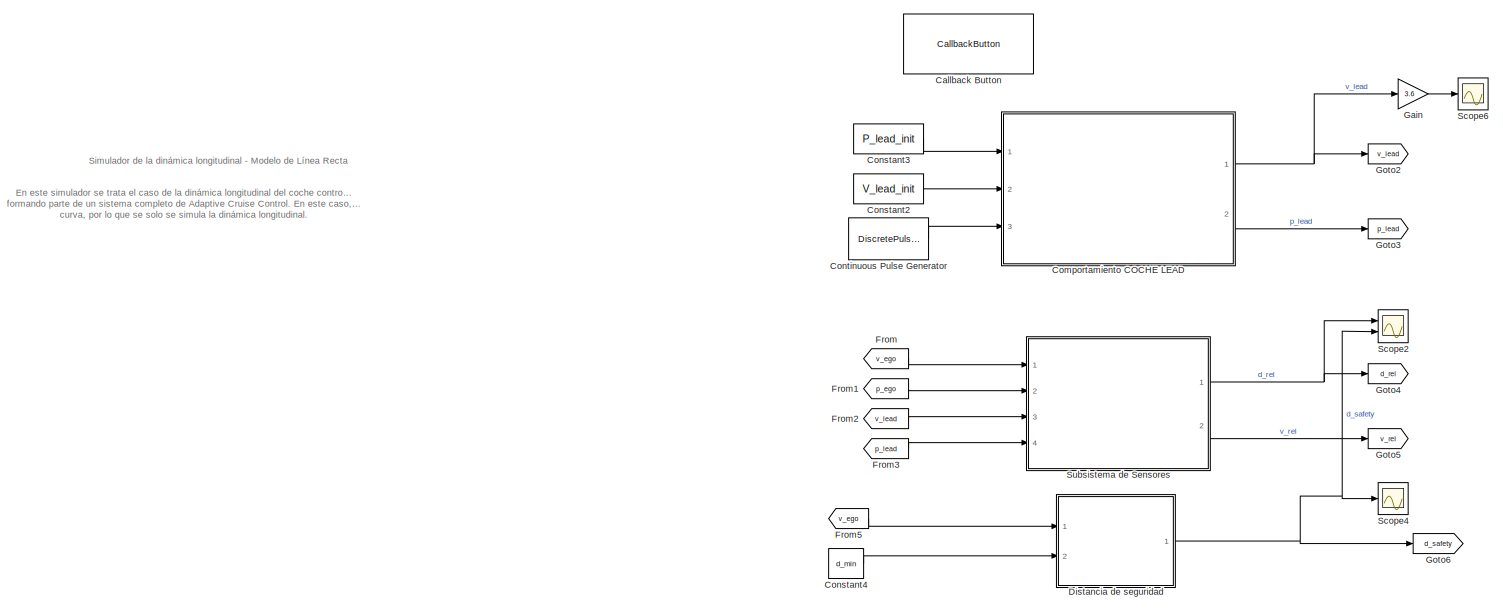
[diagram: root canvas - part 1/2, left side, full height]
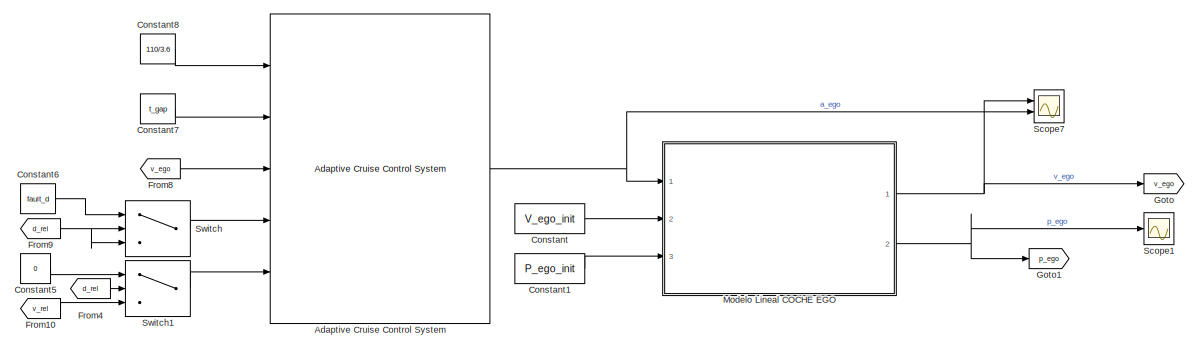
[diagram: root canvas - part 2/2, middle right region]
MODEL slx_6a7423e6e7fb
KIND model
CONFIG AbsTol = auto
CONFIG EnableMultiTasking = off
CONFIG FixedStep = auto
CONFIG InitFcn = initialize
CONFIG MaxStep = auto
CONFIG MinStep = auto
CONFIG RelTol = 1e-3
CONFIG SampleTimeConstraint = Unconstrained
CONFIG Solver = VariableStepAuto
CONFIG SolverName = VariableStepAuto
CONFIG StartTime = 0.0
CONFIG StopTime = 200
BLOCK [Reference] Adaptive Cruise Control System  REF=mpcadaslib/Adaptive Cruise Control System
  Ports = [5, 1]
  SourceBlock = mpcadaslib/Adaptive Cruise Control System
  SourceProductBaseCode = MP
  SourceType = Adaptive cruise control (ACC) system
BLOCK [CallbackButton] Callback Button
  ButtonText = INICIALIZACION
  ClickFcn = initialize
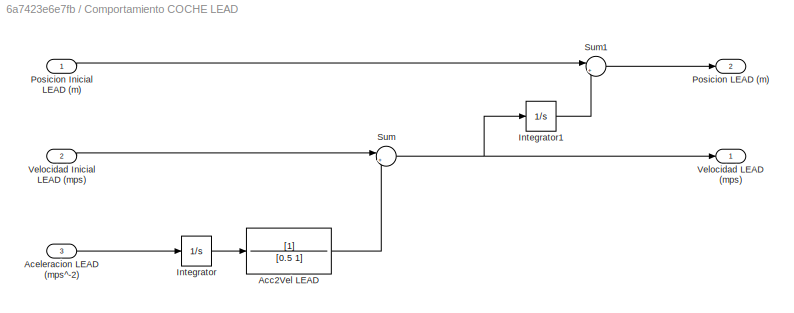
BLOCK [SubSystem] Comportamiento COCHE LEAD
  Ports = [3, 2]
  RequestExecContextInheritance = off
BLOCK [TransferFcn] Comportamiento COCHE LEAD/Acc2Vel LEAD
  Denominator = [0.5 1]
BLOCK [Inport] Comportamiento COCHE LEAD/Aceleracion LEAD (mps^-2)
  Port = 3
BLOCK [Integrator] Comportamiento COCHE LEAD/Integrator
  Ports = [1, 1]
BLOCK [Integrator] Comportamiento COCHE LEAD/Integrator1
  Ports = [1, 1]
BLOCK [Inport] Comportamiento COCHE LEAD/Posicion Inicial LEAD (m)
BLOCK [Outport] Comportamiento COCHE LEAD/Posicion LEAD (m)
  Port = 2
  VectorParamsAs1DForOutWhenUnconnected = off
BLOCK [Sum] Comportamiento COCHE LEAD/Sum
  Inputs = |++
  Ports = [2, 1]
BLOCK [Sum] Comportamiento COCHE LEAD/Sum1
  Inputs = |++
  Ports = [2, 1]
BLOCK [Inport] Comportamiento COCHE LEAD/Velocidad Inicial LEAD (mps)
  Port = 2
BLOCK [Outport] Comportamiento COCHE LEAD/Velocidad LEAD (mps)
  VectorParamsAs1DForOutWhenUnconnected = off
BLOCK [Constant] Constant
  Value = V_ego_init
BLOCK [Constant] Constant1
  Value = P_ego_init
BLOCK [Constant] Constant2
  Value = V_lead_init
BLOCK [Constant] Constant3
  Value = P_lead_init
BLOCK [Constant] Constant4
  Value = d_min
BLOCK [Constant] Constant5
  Value = 0
BLOCK [Constant] Constant6
  Value = fault_d
BLOCK [Constant] Constant7
  Value = t_gap
BLOCK [Constant] Constant8
  Value = 110/3.6
BLOCK [DiscretePulseGenerator] Continuous Pulse Generator
  Amplitude = -2
  Period = 50
  PhaseDelay = 10
  Ports = [0, 1]
  PulseType = Time based
  PulseWidth = 1/4
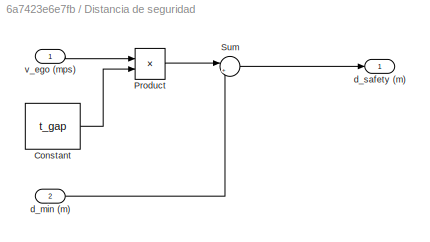
BLOCK [SubSystem] Distancia de seguridad
  Ports = [2, 1]
  RequestExecContextInheritance = off
BLOCK [Constant] Distancia de seguridad/Constant
  Value = t_gap
BLOCK [Product] Distancia de seguridad/Product
  Ports = [2, 1]
BLOCK [Sum] Distancia de seguridad/Sum
  Inputs = |++
  Ports = [2, 1]
BLOCK [Inport] Distancia de seguridad/d_min (m)
  Port = 2
BLOCK [Outport] Distancia de seguridad/d_safety (m)
  VectorParamsAs1DForOutWhenUnconnected = off
BLOCK [Inport] Distancia de seguridad/v_ego (mps)
BLOCK [From] From
  GotoTag = v_ego
  TagVisibility = global
BLOCK [From] From1
  GotoTag = p_ego
  TagVisibility = global
BLOCK [From] From10
  GotoTag = v_rel
  TagVisibility = global
BLOCK [From] From2
  GotoTag = v_lead
  TagVisibility = global
BLOCK [From] From3
  GotoTag = p_lead
  TagVisibility = global
BLOCK [From] From4
  GotoTag = d_rel
  TagVisibility = global
BLOCK [From] From5
  GotoTag = v_ego
  TagVisibility = global
BLOCK [From] From8
  GotoTag = v_ego
  TagVisibility = global
BLOCK [From] From9
  GotoTag = d_rel
  TagVisibility = global
BLOCK [Gain] Gain
  Gain = 3.6
BLOCK [Goto] Goto
  GotoTag = v_ego
  TagVisibility = global
BLOCK [Goto] Goto1
  GotoTag = p_ego
  TagVisibility = global
BLOCK [Goto] Goto2
  GotoTag = v_lead
  TagVisibility = global
BLOCK [Goto] Goto3
  GotoTag = p_lead
  TagVisibility = global
BLOCK [Goto] Goto4
  GotoTag = d_rel
  TagVisibility = global
BLOCK [Goto] Goto5
  GotoTag = v_rel
  TagVisibility = global
BLOCK [Goto] Goto6
  GotoTag = d_safety
  TagVisibility = global
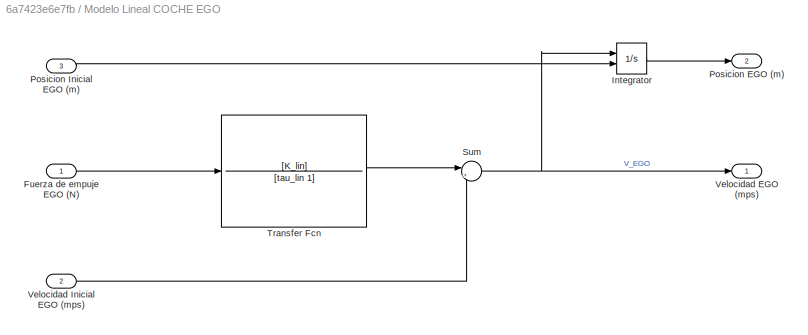
BLOCK [SubSystem] Modelo Lineal COCHE EGO
  Ports = [3, 2]
  RequestExecContextInheritance = off
BLOCK [Inport] Modelo Lineal COCHE EGO/Fuerza de empuje EGO (N)
BLOCK [Integrator] Modelo Lineal COCHE EGO/Integrator
  InitialConditionSource = external
  Ports = [2, 1]
BLOCK [Outport] Modelo Lineal COCHE EGO/Posicion EGO (m)
  Port = 2
  VectorParamsAs1DForOutWhenUnconnected = off
BLOCK [Inport] Modelo Lineal COCHE EGO/Posicion Inicial EGO (m)
  Port = 3
BLOCK [Sum] Modelo Lineal COCHE EGO/Sum
  Inputs = |++
  Ports = [2, 1]
BLOCK [TransferFcn] Modelo Lineal COCHE EGO/Transfer Fcn
  Denominator = [tau_lin 1]
  NameLocation = top
  Numerator = [K_lin]
BLOCK [Outport] Modelo Lineal COCHE EGO/Velocidad EGO (mps)
  VectorParamsAs1DForOutWhenUnconnected = off
BLOCK [Inport] Modelo Lineal COCHE EGO/Velocidad Inicial EGO (mps)
  Port = 2
BLOCK [Scope] Scope1
  Floating = off
  NumInputPorts = 1
  Ports = [1]
  ScopeSpecificationString = Simulink.scopes.TimeScopeBlockCfg('CurrentConfiguration', extmgr.ConfigurationSet(extmgr.Configuration('Core','General UI',true),extmgr.Configuration('Core','Source UI',true),extmgr.Configuration('Sources','WiredSimulink',true,'DataLoggingVariableName','ScopeData1'),extmgr.Configuration('Visuals','Time Domain',true,'SerializedDisplays',{struct('MinYLimReal','-746.53947','MaxYLimReal','6718.85523',...<+1382ch>
BLOCK [Scope] Scope2
  Floating = off
  NumInputPorts = 2
  Ports = [2]
  ScopeSpecificationString = Simulink.scopes.TimeScopeBlockCfg('CurrentConfiguration', extmgr.ConfigurationSet(extmgr.Configuration('Core','General UI',true),extmgr.Configuration('Core','Source UI',true),extmgr.Configuration('Sources','WiredSimulink',true,'SampleTime','0.1'),extmgr.Configuration('Visuals','Time Domain',true,'PlotType','Stairs','SerializedDisplays',{struct('MinYLimReal','8.75','MaxYLimReal','221.25','YLabelRea...<+1450ch>
BLOCK [Scope] Scope4
  Floating = off
  NumInputPorts = 1
  Ports = [1]
  ScopeSpecificationString = Simulink.scopes.TimeScopeBlockCfg('CurrentConfiguration', extmgr.ConfigurationSet(extmgr.Configuration('Core','General UI',true),extmgr.Configuration('Core','Source UI',true),extmgr.Configuration('Sources','WiredSimulink',true,'DataLoggingVariableName','ScopeData2'),extmgr.Configuration('Visuals','Time Domain',true,'SerializedDisplays',{struct('MinYLimReal','43.35207','MaxYLimReal','57.24366','YLa...<+1373ch>
BLOCK [Scope] Scope6
  Floating = off
  NumInputPorts = 1
  Ports = [1]
  ScopeSpecificationString = Simulink.scopes.TimeScopeBlockCfg('CurrentConfiguration', extmgr.ConfigurationSet(extmgr.Configuration('Core','General UI',true),extmgr.Configuration('Core','Source UI',true),extmgr.Configuration('Sources','WiredSimulink',true,'DataLoggingVariableName','ScopeData6'),extmgr.Configuration('Visuals','Time Domain',true,'SerializedDisplays',{struct('MinYLimReal','93.8','MaxYLimReal','111.8','YLabelReal...<+1412ch>
BLOCK [Scope] Scope7
  Floating = off
  NumInputPorts = 2
  Ports = [2]
  ScopeSpecificationString = Simulink.scopes.TimeScopeBlockCfg('CurrentConfiguration', extmgr.ConfigurationSet(extmgr.Configuration('Core','General UI',true),extmgr.Configuration('Core','Source UI',true),extmgr.Configuration('Sources','WiredSimulink',true,'DataLoggingVariableName','ScopeData5'),extmgr.Configuration('Visuals','Time Domain',true,'SerializedDisplays',{struct('MinYLimReal','22.23471','MaxYLimReal','31.49577','YLa...<+2072ch>
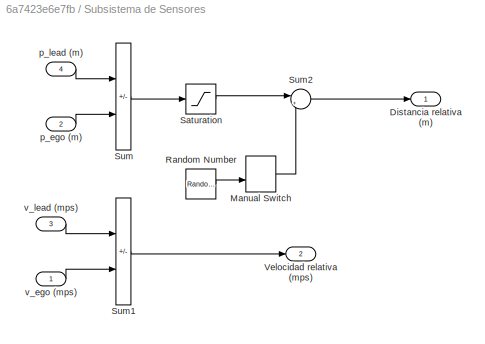
BLOCK [SubSystem] Subsistema de Sensores
  Ports = [4, 2]
  RequestExecContextInheritance = off
BLOCK [Outport] Subsistema de Sensores/Distancia relativa (m)
  VectorParamsAs1DForOutWhenUnconnected = off
BLOCK [ManualSwitch] Subsistema de Sensores/Manual Switch
BLOCK [RandomNumber] Subsistema de Sensores/Random Number
  SampleTime = 0.1
  Variance = 0.06
BLOCK [Saturate] Subsistema de Sensores/Saturation
  LowerLimit = 0
  UpperLimit = fault_d
BLOCK [Sum] Subsistema de Sensores/Sum
  IconShape = rectangular
  Inputs = +-
  Ports = [2, 1]
BLOCK [Sum] Subsistema de Sensores/Sum1
  IconShape = rectangular
  Inputs = +-
  Ports = [2, 1]
BLOCK [Sum] Subsistema de Sensores/Sum2
  Inputs = |++
  Ports = [2, 1]
BLOCK [Outport] Subsistema de Sensores/Velocidad relativa (mps)
  Port = 2
  VectorParamsAs1DForOutWhenUnconnected = off
BLOCK [Inport] Subsistema de Sensores/p_ego (m)
  Port = 2
BLOCK [Inport] Subsistema de Sensores/p_lead (m)
  Port = 4
BLOCK [Inport] Subsistema de Sensores/v_ego (mps)
BLOCK [Inport] Subsistema de Sensores/v_lead (mps)
  Port = 3
BLOCK [Switch] Switch
  Criteria = u2 > Threshold
  InputSameDT = off
  SaturateOnIntegerOverflow = off
  Threshold = 200
BLOCK [Switch] Switch1
  Criteria = u2 > Threshold
  InputSameDT = off
  SaturateOnIntegerOverflow = off
  Threshold = 200
ANNOTATION (root): En este simulador se trata el caso de la dinámica longitudinal del coche controlada mediante un MPC formando parte de un sistema completo de Adaptive Cruise Control. En este caso, no se considera ninguna curva, por lo que se solo se simula la dinámica longitudinal.
ANNOTATION (root): Simulador de la dinámica longitudinal - Modelo de Línea Recta
NET Adaptive Cruise Control System:1 -> Modelo Lineal COCHE EGO:1, Scope7:2
LINE Comportamiento COCHE LEAD/Acc2Vel LEAD:1 -> Comportamiento COCHE LEAD/Sum:2
LINE Comportamiento COCHE LEAD/Aceleracion LEAD (mps^-2):1 -> Comportamiento COCHE LEAD/Integrator:1
LINE Comportamiento COCHE LEAD/Integrator1:1 -> Comportamiento COCHE LEAD/Sum1:2
LINE Comportamiento COCHE LEAD/Integrator:1 -> Comportamiento COCHE LEAD/Acc2Vel LEAD:1
LINE Comportamiento COCHE LEAD/Posicion Inicial LEAD (m):1 -> Comportamiento COCHE LEAD/Sum1:1
LINE Comportamiento COCHE LEAD/Sum1:1 -> Comportamiento COCHE LEAD/Posicion LEAD (m):1
NET Comportamiento COCHE LEAD/Sum:1 -> Comportamiento COCHE LEAD/Integrator1:1, Comportamiento COCHE LEAD/Velocidad LEAD (mps):1
LINE Comportamiento COCHE LEAD/Velocidad Inicial LEAD (mps):1 -> Comportamiento COCHE LEAD/Sum:1
NET Comportamiento COCHE LEAD:1 -> Gain:1, Goto2:1
LINE Comportamiento COCHE LEAD:2 -> Goto3:1
LINE Constant1:1 -> Modelo Lineal COCHE EGO:3
LINE Constant2:1 -> Comportamiento COCHE LEAD:2
LINE Constant3:1 -> Comportamiento COCHE LEAD:1
LINE Constant4:1 -> Distancia de seguridad:2
LINE Constant5:1 -> Switch1:1
LINE Constant6:1 -> Switch:1
LINE Constant7:1 -> Adaptive Cruise Control System:2
LINE Constant8:1 -> Adaptive Cruise Control System:1
LINE Constant:1 -> Modelo Lineal COCHE EGO:2
LINE Continuous Pulse Generator:1 -> Comportamiento COCHE LEAD:3
LINE Distancia de seguridad/Constant:1 -> Distancia de seguridad/Product:2
LINE Distancia de seguridad/Product:1 -> Distancia de seguridad/Sum:1
LINE Distancia de seguridad/Sum:1 -> Distancia de seguridad/d_safety (m):1
LINE Distancia de seguridad/d_min (m):1 -> Distancia de seguridad/Sum:2
LINE Distancia de seguridad/v_ego (mps):1 -> Distancia de seguridad/Product:1
NET Distancia de seguridad:1 -> Goto6:1, Scope2:2, Scope4:1
LINE From10:1 -> Switch1:3
LINE From1:1 -> Subsistema de Sensores:2
LINE From2:1 -> Subsistema de Sensores:3
LINE From3:1 -> Subsistema de Sensores:4
LINE From4:1 -> Switch1:2
LINE From5:1 -> Distancia de seguridad:1
LINE From8:1 -> Adaptive Cruise Control System:3
NET From9:1 -> Switch:2, Switch:3
LINE From:1 -> Subsistema de Sensores:1
LINE Gain:1 -> Scope6:1
LINE Modelo Lineal COCHE EGO/Fuerza de empuje EGO (N):1 -> Modelo Lineal COCHE EGO/Transfer Fcn:1
LINE Modelo Lineal COCHE EGO/Integrator:1 -> Modelo Lineal COCHE EGO/Posicion EGO (m):1
LINE Modelo Lineal COCHE EGO/Posicion Inicial EGO (m):1 -> Modelo Lineal COCHE EGO/Integrator:2
NET Modelo Lineal COCHE EGO/Sum:1 -> Modelo Lineal COCHE EGO/Integrator:1, Modelo Lineal COCHE EGO/Velocidad EGO (mps):1
LINE Modelo Lineal COCHE EGO/Transfer Fcn:1 -> Modelo Lineal COCHE EGO/Sum:1
LINE Modelo Lineal COCHE EGO/Velocidad Inicial EGO (mps):1 -> Modelo Lineal COCHE EGO/Sum:2
NET Modelo Lineal COCHE EGO:1 -> Goto:1, Scope7:1
NET Modelo Lineal COCHE EGO:2 -> Goto1:1, Scope1:1
LINE Subsistema de Sensores/Manual Switch:1 -> Subsistema de Sensores/Sum2:2
LINE Subsistema de Sensores/Random Number:1 -> Subsistema de Sensores/Manual Switch:2
LINE Subsistema de Sensores/Saturation:1 -> Subsistema de Sensores/Sum2:1
LINE Subsistema de Sensores/Sum1:1 -> Subsistema de Sensores/Velocidad relativa (mps):1
LINE Subsistema de Sensores/Sum2:1 -> Subsistema de Sensores/Distancia relativa (m):1
LINE Subsistema de Sensores/Sum:1 -> Subsistema de Sensores/Saturation:1
LINE Subsistema de Sensores/p_ego (m):1 -> Subsistema de Sensores/Sum:2
LINE Subsistema de Sensores/p_lead (m):1 -> Subsistema de Sensores/Sum:1
LINE Subsistema de Sensores/v_ego (mps):1 -> Subsistema de Sensores/Sum1:2
LINE Subsistema de Sensores/v_lead (mps):1 -> Subsistema de Sensores/Sum1:1
NET Subsistema de Sensores:1 -> Goto4:1, Scope2:1
LINE Subsistema de Sensores:2 -> Goto5:1
LINE Switch1:1 -> Adaptive Cruise Control System:5
LINE Switch:1 -> Adaptive Cruise Control System:4
note: NET lines group one-source signal fan-out (src -> all destinations, sorted); 1:1 wires keep LINE
